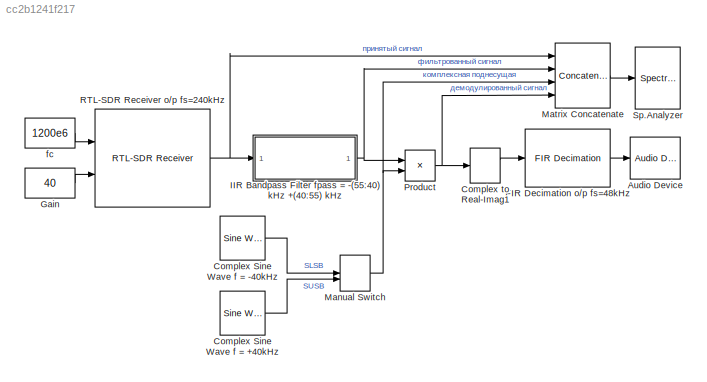
MODEL slx_cc2b1241f217
KIND model
CONFIG AbsTol = auto
CONFIG EnableMultiTasking = off
CONFIG FixedStep = auto
CONFIG MaxStep = auto
CONFIG MinStep = auto
CONFIG RelTol = 1e-3
CONFIG SampleTimeConstraint = Unconstrained
CONFIG Solver = VariableStepAuto
CONFIG SolverName = VariableStepAuto
CONFIG StartTime = 0.0
CONFIG StopTime = inf
BLOCK [Reference] Audio Device  REF=dspsnks4/Audio Device
Writer
  Ports = [1]
  SourceBlock = dspsnks4/Audio Device\nWriter
  SourceProductBaseCode = DS
  SourceProductName = DSP System Toolbox
  SourceType = Audio Device Writer
BLOCK [Reference] Complex Sine Wave f = +40kHz  REF=dspsrcs4/Sine Wave
  Ports = [0, 1]
  SourceBlock = dspsrcs4/Sine Wave
  SourceProductBaseCode = DS
  SourceProductName = DSP System Toolbox
  SourceType = Sine Wave
BLOCK [Reference] Complex Sine Wave f = -40kHz  REF=dspsrcs4/Sine Wave
  Ports = [0, 1]
  SourceBlock = dspsrcs4/Sine Wave
  SourceProductBaseCode = DS
  SourceProductName = DSP System Toolbox
  SourceType = Sine Wave
BLOCK [ComplexToRealImag] Complex to Real-Imag1
  Ports = [1, 2]
BLOCK [Reference] FIR Decimation o//p fs=48kHz  REF=dspmlti4/FIR
Decimation
  Ports = [1, 1]
  SourceBlock = dspmlti4/FIR\nDecimation
  SourceProductBaseCode = DS
  SourceProductName = DSP System Toolbox
  SourceType = FIR Decimation
  UserDataPersistent = on
BLOCK [Constant] Gain
  Value = 40
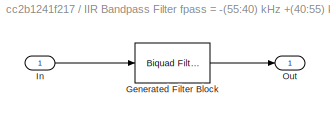
BLOCK [SubSystem] IIR Bandpass Filter fpass = -(55:40) kHz +(40:55) kHz
  CopyFcn = fdesignblkfcn(gcbh, {'CopyFcn'});
  DialogController = fdesignblkfcn
  InitFcn = fdesignblkfcn(gcbh, {'InitFcn'});
  Ports = [1, 1]
  RequestExecContextInheritance = off
  UserDataPersistent = on
BLOCK [Reference] IIR Bandpass Filter fpass = -(55:40) kHz +(40:55) kHz/Generated Filter Block  REF=dsparch4/Biquad Filter
  Ports = [1, 1]
  SourceBlock = dsparch4/Biquad Filter
  SourceProductBaseCode = DS
  SourceProductName = DSP System Toolbox
  SourceType = Biquad Filter
  Tag = BlockMethodSubSystem
  UserDataPersistent = on
BLOCK [Inport] IIR Bandpass Filter fpass = -(55:40) kHz +(40:55) kHz/In
  IconDisplay = Port number
BLOCK [Outport] IIR Bandpass Filter fpass = -(55:40) kHz +(40:55) kHz/Out
  IconDisplay = Port number
BLOCK [ManualSwitch] Manual Switch
  CurrentSetting = 0
BLOCK [Concatenate] Matrix Concatenate
  ConcatenateDimension = 2
  Mode = Multidimensional array
  NumInputs = 4
  Ports = [4, 1]
BLOCK [Product] Product
  InputSameDT = off
  OutDataTypeStr = Inherit: Inherit via internal rule
  Ports = [2, 1]
  RndMeth = Floor
  SaturateOnIntegerOverflow = off
BLOCK [Reference] RTL-SDR Receiver o//p fs=240kHz  REF=sdrrlib/RTL-SDR
Receiver
  Ports = [2, 1]
  SourceBlock = sdrrlib/RTL-SDR\nReceiver
  SourceProductBaseCode = RTLSDR
  SourceProductName = Communications System Toolbox Support Package for RTL-SDR Radio
  SourceType = RTL-SDR Receiver
BLOCK [SpectrumAnalyzer] Sp.Analyzer
  Ports = [1]
  ScopeSpecificationString = spbscopes.SpectrumAnalyzerBlockCfg('CurrentConfiguration', extmgr.ConfigurationSet(extmgr.Configuration('Core','General UI',true,'ShowMainToolbar',false,'ShowStatusbar',false,'FigureColor',[1 1 1]),extmgr.Configuration('Core','Source UI',true),extmgr.Configuration('Sources','WiredSimulink',true),extmgr.Configuration('Sources','Simulink',false),extmgr.Configuration('Sources','Streaming',false),extm...<+3933ch>
BLOCK [Constant] fc
  Value = 1200e6
LINE Complex Sine Wave f = +40kHz:1 -> Manual Switch:2
LINE Complex Sine Wave f = -40kHz:1 -> Manual Switch:1
LINE Complex to Real-Imag1:1 -> FIR Decimation o//p fs=48kHz:1
LINE FIR Decimation o//p fs=48kHz:1 -> Audio Device:1
LINE Gain:1 -> RTL-SDR Receiver o//p fs=240kHz:2
NET IIR Bandpass Filter fpass = -(55:40) kHz +(40:55) kHz:1 -> Matrix Concatenate:2, Product:1
NET Manual Switch:1 -> Matrix Concatenate:3, Product:2
LINE Matrix Concatenate:1 -> Sp.Analyzer:1
NET Product:1 -> Complex to Real-Imag1:1, Matrix Concatenate:4
NET RTL-SDR Receiver o//p fs=240kHz:1 -> IIR Bandpass Filter fpass = -(55:40) kHz +(40:55) kHz:1, Matrix Concatenate:1
LINE fc:1 -> RTL-SDR Receiver o//p fs=240kHz:1
note: NET lines group one-source signal fan-out (src -> all destinations, sorted); 1:1 wires keep LINE
